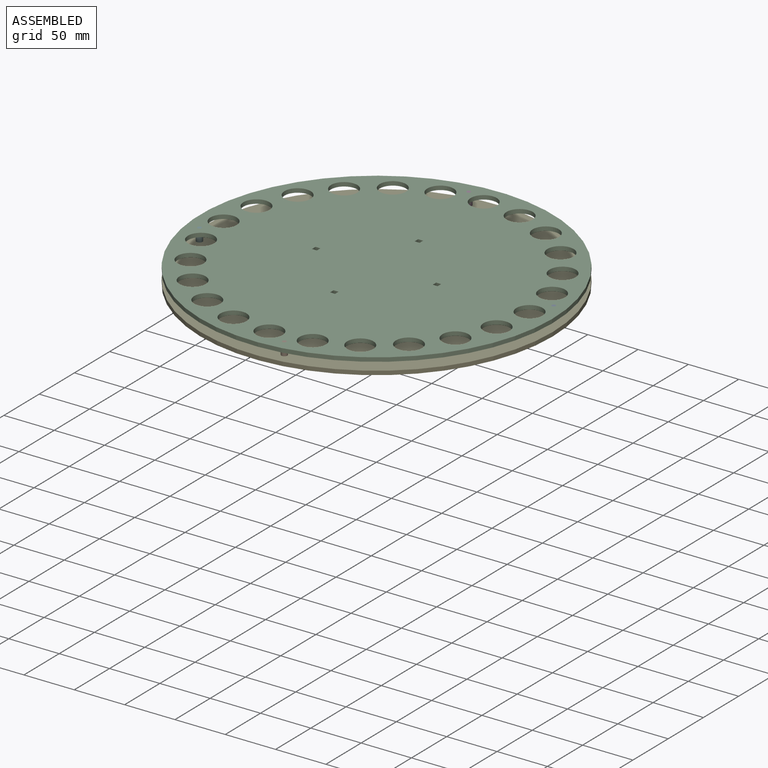
[diagram: assembled view]
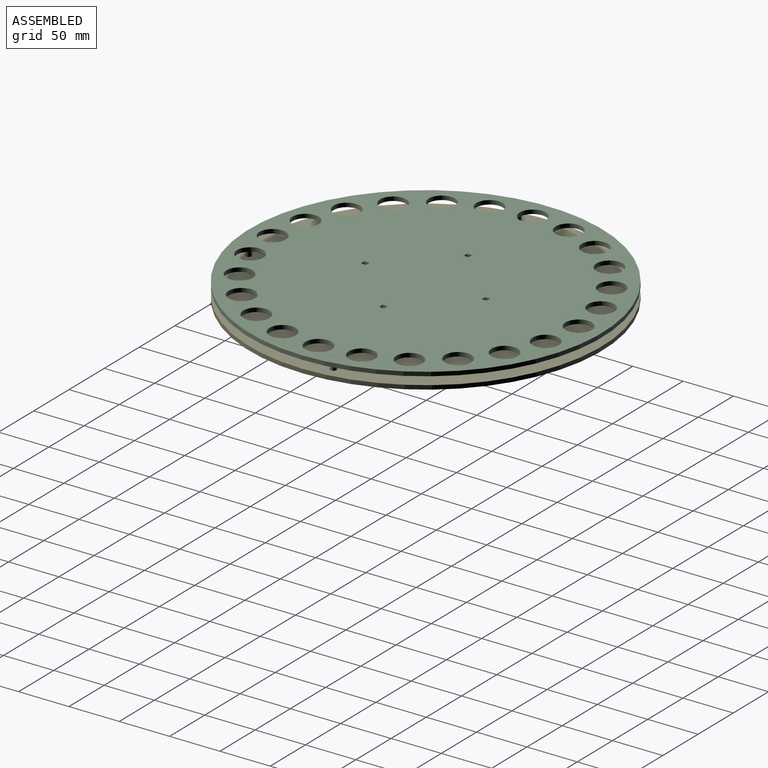
[diagram: assembled view, second angle]
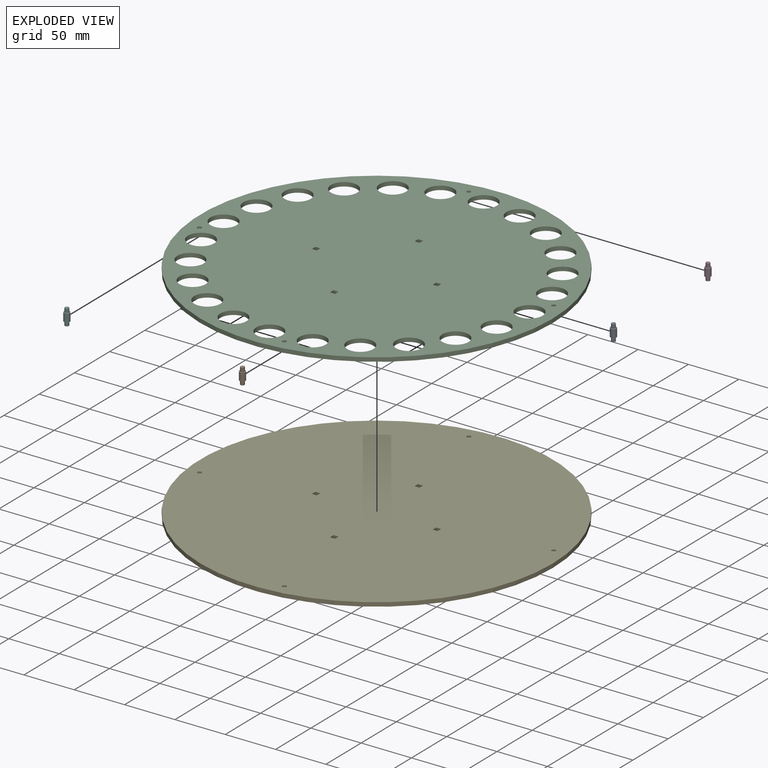
[diagram: exploded view]
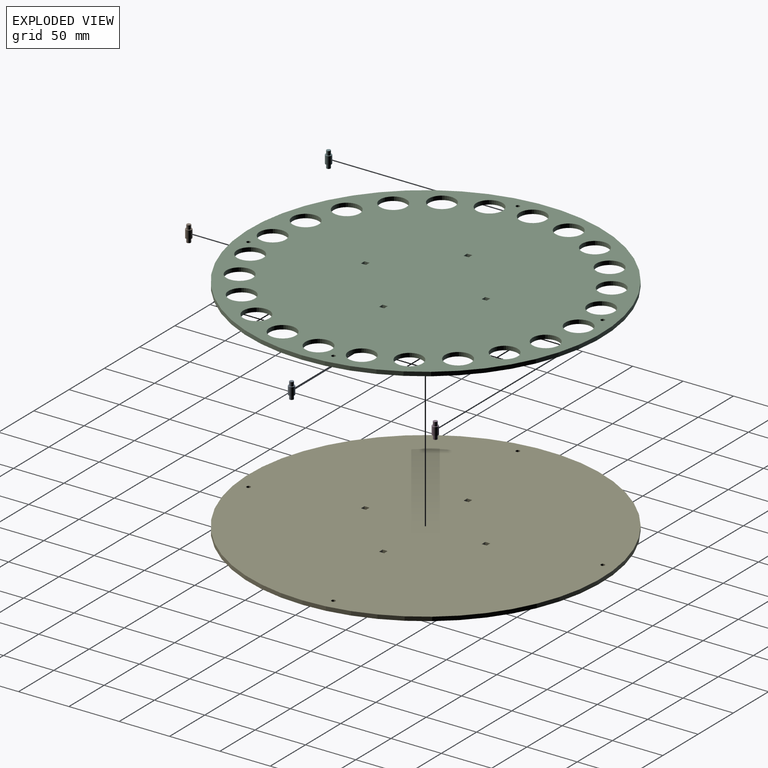
[diagram: exploded view, second angle]
ASSEMBLY  parts=6 mates=5
PART A: 7 faces, bbox 16x6x6 mm
  f0: cylinder r=3mm len=8mm, axis (-1,0,0), area 150.8mm2, adj f1,f2
  f1: plane 6x6mm, normal (1,0,0), area 15.7mm2, adj f0,f5
  f2: plane 6x6mm, normal (-1,0,0), area 15.7mm2, adj f0,f4
  f3: plane 4x4mm, normal (-1,0,0), area 12.6mm2, adj f4
  f4: cylinder r=2mm len=4mm, axis (-1,0,0), area 50.3mm2, adj f2,f3
  f5: cylinder r=2mm len=4mm, axis (-1,0,0), area 50.3mm2, adj f1,f6
  f6: plane 4x4mm, normal (1,0,0), area 12.6mm2, adj f5
PART B: same geometry as A
PART C: 47 faces, bbox 350x350x4 mm
  f0: plane 5x4mm, normal (0,1,0), area 20mm2, adj f1,f35,f45,f46
  f1: plane 5x4mm, normal (1,0,0), area 20mm2, adj f0,f2,f45,f46
  f2: plane 5x4mm, normal (0,-1,0), area 20mm2, adj f1,f35,f45,f46
  f3: plane 5x4mm, normal (0,-1,0), area 20mm2, adj f4,f36,f45,f46
  f4: plane 5x4mm, normal (-1,0,0), area 20mm2, adj f3,f5,f45,f46
  f5: plane 5x4mm, normal (0,1,0), area 20mm2, adj f4,f36,f45,f46
  f6: plane 5x4mm, normal (0,-1,0), area 20mm2, adj f7,f37,f45,f46
  f7: plane 5x4mm, normal (-1,0,0), area 20mm2, adj f6,f8,f45,f46
  f8: plane 5x4mm, normal (0,1,0), area 20mm2, adj f7,f37,f45,f46
  f9: plane 5x4mm, normal (-1,0,0), area 20mm2, adj f10,f38,f45,f46
  f10: plane 5x4mm, normal (0,1,0), area 20mm2, adj f9,f11,f45,f46
  f11: plane 5x4mm, normal (1,0,0), area 20mm2, adj f10,f38,f45,f46
  f12: cylinder r=13mm len=26mm, axis (0,0,-1), area 326.7mm2, adj f45,f46
  f13: cylinder r=13mm len=26mm, axis (0,0,-1), area 326.7mm2, adj f45,f46
  f14: cylinder r=13mm len=26mm, axis (0,0,-1), area 326.7mm2, adj f45,f46
  f15: cylinder r=13mm len=26mm, axis (0,0,-1), area 326.7mm2, adj f45,f46
  f16: cylinder r=13mm len=26mm, axis (0,0,-1), area 326.7mm2, adj f45,f46
  f17: cylinder r=13mm len=26mm, axis (0,0,-1), area 326.7mm2, adj f45,f46
  f18: cylinder r=13mm len=26mm, axis (0,0,-1), area 326.7mm2, adj f45,f46
  f19: cylinder r=13mm len=26mm, axis (0,0,-1), area 326.7mm2, adj f45,f46
  f20: cylinder r=13mm len=26mm, axis (0,0,-1), area 326.7mm2, adj f45,f46
  f21: cylinder r=13mm len=26mm, axis (0,0,-1), area 326.7mm2, adj f45,f46
  f22: cylinder r=13mm len=26mm, axis (0,0,-1), area 326.7mm2, adj f45,f46
  f23: cylinder r=13mm len=26mm, axis (0,0,-1), area 326.7mm2, adj f45,f46
  f24: cylinder r=13mm len=26mm, axis (0,0,-1), area 326.7mm2, adj f45,f46
  f25: cylinder r=13mm len=26mm, axis (0,0,-1), area 326.7mm2, adj f45,f46
  f26: cylinder r=13mm len=26mm, axis (0,0,-1), area 326.7mm2, adj f45,f46
  f27: cylinder r=13mm len=26mm, axis (0,0,-1), area 326.7mm2, adj f45,f46
  f28: cylinder r=13mm len=26mm, axis (0,0,-1), area 326.7mm2, adj f45,f46
  f29: cylinder r=13mm len=26mm, axis (0,0,-1), area 326.7mm2, adj f45,f46
  f30: cylinder r=13mm len=26mm, axis (0,0,-1), area 326.7mm2, adj f45,f46
  f31: cylinder r=13mm len=26mm, axis (0,0,-1), area 326.7mm2, adj f45,f46
  f32: cylinder r=13mm len=26mm, axis (0,0,-1), area 326.7mm2, adj f45,f46
  f33: cylinder r=13mm len=26mm, axis (0,0,-1), area 326.7mm2, adj f45,f46
  f34: cylinder r=13mm len=26mm, axis (0,0,-1), area 326.7mm2, adj f45,f46
  f35: plane 5x4mm, normal (-1,0,0), area 20mm2, adj f0,f2,f45,f46
  f36: plane 5x4mm, normal (1,0,0), area 20mm2, adj f3,f5,f45,f46
  f37: plane 5x4mm, normal (1,0,0), area 20mm2, adj f6,f8,f45,f46
  f38: plane 5x4mm, normal (0,-1,0), area 20mm2, adj f9,f11,f45,f46
  f39: cylinder r=13mm len=26mm, axis (0,0,-1), area 326.7mm2, adj f45,f46
  f40: cylinder r=2mm len=4mm, axis (0,0,-1), area 50.3mm2, adj f45,f46
  f41: cylinder r=2mm len=4mm, axis (0,0,-1), area 50.3mm2, adj f45,f46
  f42: cylinder r=2mm len=4mm, axis (0,0,-1), area 50.3mm2, adj f45,f46
  f43: cylinder r=2mm len=4mm, axis (0,0,-1), area 50.3mm2, adj f45,f46
  f44: cylinder r=175mm len=350mm, axis (0,0,-1), area 4398.2mm2, adj f45,f46
  f45: plane 350x350mm, normal (0,0,1), area 83318.7mm2, adj f0,f1,f2,f3,f4,f5,f6,f7
  f46: plane 350x350mm, normal (0,0,-1), area 83318.7mm2, adj f0,f1,f2,f3,f4,f5,f6,f7
PART D: same geometry as A
PART E: 23 faces, bbox 350x350x4 mm
  f0: plane 5x4mm, normal (0,1,0), area 20mm2, adj f1,f12,f21,f22
  f1: plane 5x4mm, normal (1,0,0), area 20mm2, adj f0,f2,f21,f22
  f2: plane 5x4mm, normal (0,-1,0), area 20mm2, adj f1,f12,f21,f22
  f3: plane 5x4mm, normal (0,-1,0), area 20mm2, adj f4,f13,f21,f22
  f4: plane 5x4mm, normal (-1,0,0), area 20mm2, adj f3,f5,f21,f22
  f5: plane 5x4mm, normal (0,1,0), area 20mm2, adj f4,f13,f21,f22
  f6: plane 5x4mm, normal (0,-1,0), area 20mm2, adj f7,f14,f21,f22
  f7: plane 5x4mm, normal (-1,0,0), area 20mm2, adj f6,f8,f21,f22
  f8: plane 5x4mm, normal (0,1,0), area 20mm2, adj f7,f14,f21,f22
  f9: plane 5x4mm, normal (-1,0,0), area 20mm2, adj f10,f15,f21,f22
  f10: plane 5x4mm, normal (0,1,0), area 20mm2, adj f9,f11,f21,f22
  f11: plane 5x4mm, normal (1,0,0), area 20mm2, adj f10,f15,f21,f22
  f12: plane 5x4mm, normal (-1,0,0), area 20mm2, adj f0,f2,f21,f22
  f13: plane 5x4mm, normal (1,0,0), area 20mm2, adj f3,f5,f21,f22
  f14: plane 5x4mm, normal (1,0,0), area 20mm2, adj f6,f8,f21,f22
  f15: plane 5x4mm, normal (0,-1,0), area 20mm2, adj f9,f11,f21,f22
  f16: cylinder r=2mm len=4mm, axis (0,0,-1), area 50.3mm2, adj f21,f22
  f17: cylinder r=2mm len=4mm, axis (0,0,-1), area 50.3mm2, adj f21,f22
  f18: cylinder r=2mm len=4mm, axis (0,0,-1), area 50.3mm2, adj f21,f22
  f19: cylinder r=2mm len=4mm, axis (0,0,-1), area 50.3mm2, adj f21,f22
  f20: cylinder r=175mm len=350mm, axis (0,0,-1), area 4398.2mm2, adj f21,f22
  f21: plane 350x350mm, normal (0,0,1), area 96061mm2, adj f0,f1,f2,f3,f4,f5,f6,f7
  f22: plane 350x350mm, normal (0,0,-1), area 96061mm2, adj f0,f1,f2,f3,f4,f5,f6,f7
PART F: same geometry as A
PLACE A rot(axis=(0,1,0),90deg) t=(79.7,23.61,36.8)mm
PLACE B rot(axis=(0,1,0),90deg) t=(-60.2,-158.71,36.8)mm
PLACE C t=(-31.41,2.4,40.8)mm
PLACE D rot(axis=(0,-1,0),90deg) t=(-2.62,163.51,36.8)mm
PLACE E t=(-31.41,2.4,28.8)mm
PLACE F rot(axis=(0,-1,0),90deg) t=(-142.52,-18.81,36.8)mm
MATE fastened F.f0 <-> E.f19  axis (0,0,-1) through (-192.52,-18.81,28.8)mm
MATE fastened B.f0 <-> E.f18  axis (0,0,-1) through (-10.2,-158.71,28.8)mm
MATE fastened A.f0 <-> E.f17  axis (0,0,-1) through (129.7,23.61,28.8)mm
MATE fastened C.f40 <-> A.f0  axis (0,0,-1) through (129.7,23.61,40.8)mm
MATE fastened D.f0 <-> E.f16  axis (0,0,-1) through (-52.62,163.51,28.8)mm
